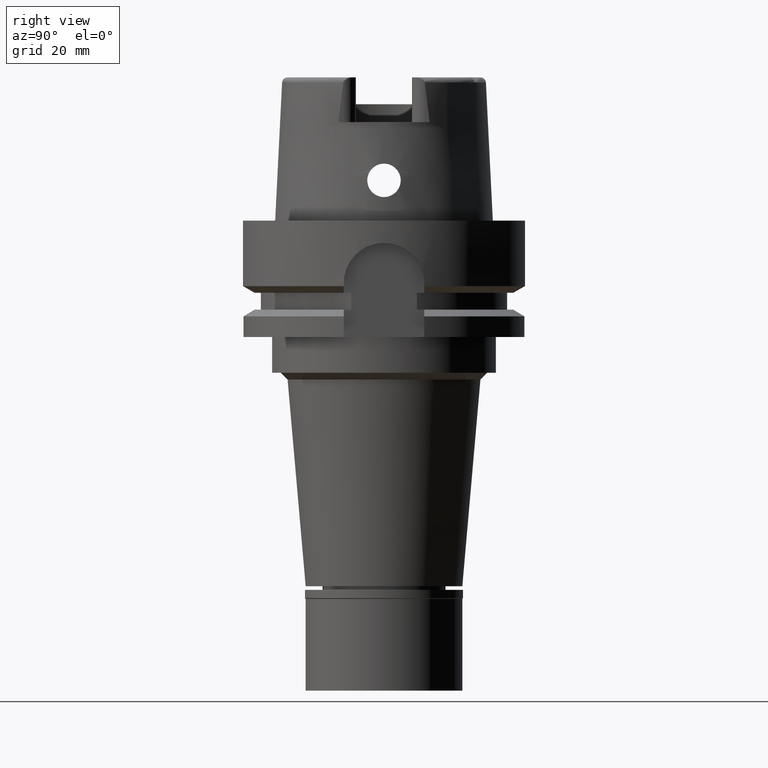
[diagram: clean part render]
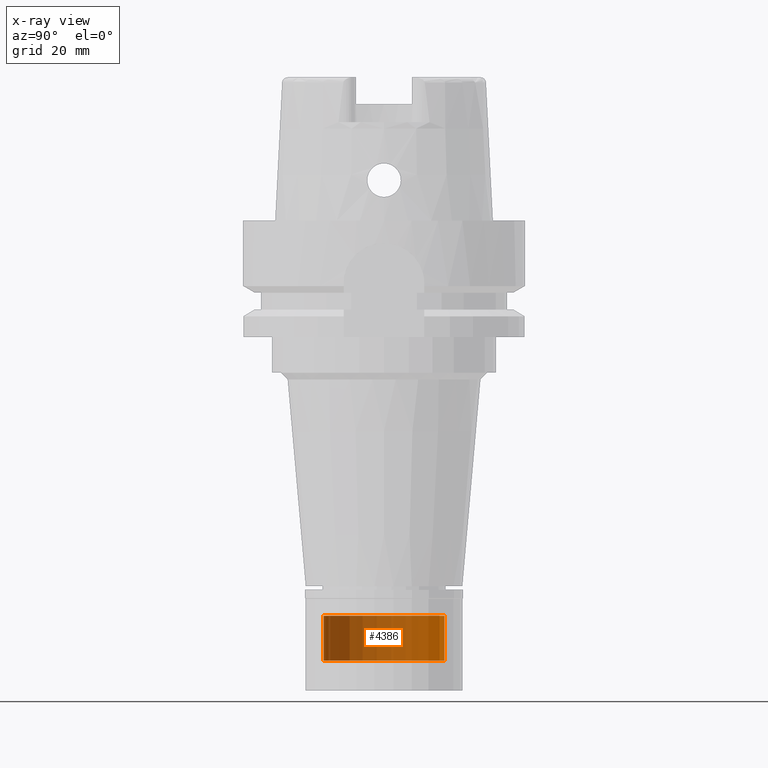
[diagram: x-ray — body ghosted, one internal face saturated and labeled with its STEP entity id]
A machine part, right view, then the same camera in x-ray: the body is ghosted and one INTERNAL B-rep face — a face not visible from any outside direction — is saturated and labeled: STEP entity #4386.
In plain terms, the highlighted cylindrical surface (partial cylindrical patch) has radius 13.5 mm, axis along (0, 0, 1).
Its self-contained STEP definition (entity closure, byte-faithful):
#290 = VERTEX_POINT ( 'NONE', #3346 ) ;
#513 = VERTEX_POINT ( 'NONE', #4946 ) ;
#531 = DIRECTION ( 'NONE',  ( 0.0000000000000000000, 0.0000000000000000000, 1.000000000000000000 ) ) ;
#672 = LINE ( 'NONE', #3684, #2444 ) ;
#785 = VERTEX_POINT ( 'NONE', #3592 ) ;
#969 = AXIS2_PLACEMENT_3D ( 'NONE', #1339, #1313, #2998 ) ;
#970 = EDGE_CURVE ( 'NONE', #290, #513, #1983, .T. ) ;
#987 = EDGE_CURVE ( 'NONE', #290, #785, #5179, .T. ) ;
#1135 = CARTESIAN_POINT ( 'NONE',  ( 0.0000000000000000000, 13.50000000000000000, -98.29999999999999716 ) ) ;
#1313 = DIRECTION ( 'NONE',  ( 0.0000000000000000000, 0.0000000000000000000, 1.000000000000000000 ) ) ;
#1339 = CARTESIAN_POINT ( 'NONE',  ( 0.0000000000000000000, 0.0000000000000000000, -98.29999999999999716 ) ) ;
#1636 = EDGE_LOOP ( 'NONE', ( #2194, #5048, #3374, #3253 ) ) ;
#1798 = FACE_OUTER_BOUND ( 'NONE', #1636, .T. ) ;
#1914 = CARTESIAN_POINT ( 'NONE',  ( 0.0000000000000000000, 0.0000000000000000000, 0.0000000000000000000 ) ) ;
#1983 = LINE ( 'NONE', #3373, #2699 ) ;
#2194 = ORIENTED_EDGE ( 'NONE', *, *, #4661, .T. ) ;
#2209 = DIRECTION ( 'NONE',  ( 0.0000000000000000000, 1.000000000000000000, 0.0000000000000000000 ) ) ;
#2357 = DIRECTION ( 'NONE',  ( 0.0000000000000000000, -1.000000000000000000, 0.0000000000000000000 ) ) ;
#2444 = VECTOR ( 'NONE', #4924, 1000.000000000000000 ) ;
#2625 = AXIS2_PLACEMENT_3D ( 'NONE', #1914, #531, #2209 ) ;
#2699 = VECTOR ( 'NONE', #5364, 1000.000000000000000 ) ;
#2793 = AXIS2_PLACEMENT_3D ( 'NONE', #2839, #3252, #2357 ) ;
#2839 = CARTESIAN_POINT ( 'NONE',  ( 0.0000000000000000000, 0.0000000000000000000, -88.29999999999999716 ) ) ;
#2937 = VERTEX_POINT ( 'NONE', #1135 ) ;
#2998 = DIRECTION ( 'NONE',  ( 0.0000000000000000000, 1.000000000000000000, 0.0000000000000000000 ) ) ;
#3252 = DIRECTION ( 'NONE',  ( 0.0000000000000000000, 0.0000000000000000000, -1.000000000000000000 ) ) ;
#3253 = ORIENTED_EDGE ( 'NONE', *, *, #4547, .T. ) ;
#3346 = CARTESIAN_POINT ( 'NONE',  ( 0.0000000000000000000, -13.50000000000000000, -88.29999999999999716 ) ) ;
#3373 = CARTESIAN_POINT ( 'NONE',  ( 0.0000000000000000000, -13.50000000000000000, -88.29999999999999716 ) ) ;
#3374 = ORIENTED_EDGE ( 'NONE', *, *, #987, .T. ) ;
#3592 = CARTESIAN_POINT ( 'NONE',  ( 0.0000000000000000000, 13.50000000000000000, -88.29999999999999716 ) ) ;
#3684 = CARTESIAN_POINT ( 'NONE',  ( 0.0000000000000000000, 13.50000000000000000, -88.29999999999999716 ) ) ;
#4386 = ADVANCED_FACE ( 'NONE', ( #1798 ), #4873, .T. ) ;
#4547 = EDGE_CURVE ( 'NONE', #785, #2937, #672, .T. ) ;
#4661 = EDGE_CURVE ( 'NONE', #2937, #513, #4764, .T. ) ;
#4764 = CIRCLE ( 'NONE', #969, 13.50000000000000000 ) ;
#4873 = CYLINDRICAL_SURFACE ( 'NONE', #2625, 13.50000000000000000 ) ;
#4924 = DIRECTION ( 'NONE',  ( 0.0000000000000000000, 0.0000000000000000000, -1.000000000000000000 ) ) ;
#4946 = CARTESIAN_POINT ( 'NONE',  ( 0.0000000000000000000, -13.50000000000000000, -98.29999999999999716 ) ) ;
#5048 = ORIENTED_EDGE ( 'NONE', *, *, #970, .F. ) ;
#5179 = CIRCLE ( 'NONE', #2793, 13.50000000000000000 ) ;
#5364 = DIRECTION ( 'NONE',  ( 0.0000000000000000000, 0.0000000000000000000, -1.000000000000000000 ) ) ;